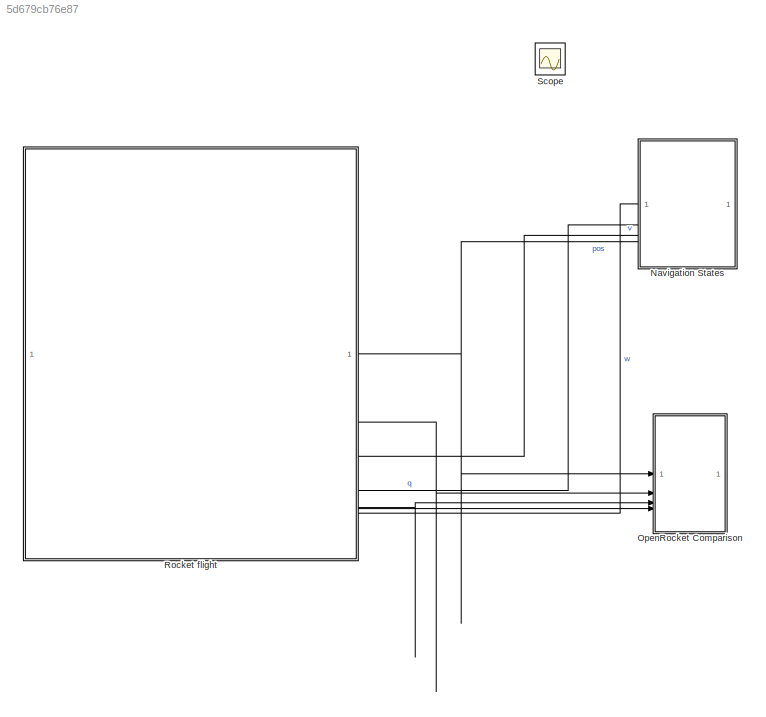
MODEL slx_5d679cb76e87
KIND model
CONFIG AbsTol = auto
CONFIG EnableMultiTasking = off
CONFIG FixedStep = auto
CONFIG InitFcn = %%% Sensor with 3D measurement\n% Define elements\nelems(1) = Simulink.BusElement;\nelems(1).Name = 'meas';\nelems(1).Dimensions = 3;\nelems(1).DataType = 'double';\nelems(2) = Simulink.BusElement;\nelems(2).Name = 'status';\nelems(2).Dimensions = 1;\nelems(2).DataType = 'boolean';\n% Create bus\nSensor3DBus = Simulink.Bus;\nSensor3DBus.Elements = elems;\n\n%%% Sensor with 1D measurement\n% Define elements\nelems...<+290ch>
CONFIG MaxStep = 0.002
CONFIG MinStep = auto
CONFIG RelTol = 1e-5
CONFIG SampleTimeConstraint = Unconstrained
CONFIG SolverName = ode45
CONFIG StartTime = 0.0
CONFIG StopTime = 70
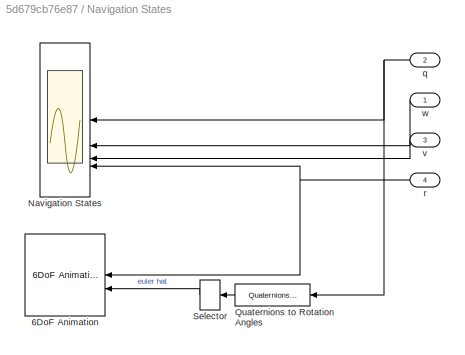
BLOCK [SubSystem] Navigation States
BLOCK [Reference] Navigation States/6DoF Animation  REF=aerolibanim/6DoF Animation
  NameLocation = top
  SourceBlock = aerolibanim/6DoF Animation
  SourceType = 6DoF_Animation
BLOCK [Scope] Navigation States/Navigation States
  ActiveDisplayYMaximum = 1.2486648107009546
  ActiveDisplayYMinimum = -1.2408627479450127
  DataLoggingVariableName = ScopeData7
  Floating = off
  GraphicalSettings = {"AxesScalingProperties":{"AlignXAxis":"Center","AlignYAxis":"Center","AutoScaleXAxisLimits":false,"AxesScaling":"Manual","AxesScalingNumUpdates":10,"ExpandOnly":true,"ScaleAxesLimitsAtStop":false,"XAxisDataRange":100,"YAxisDataRange":80},"DisplayProperties":{"ColorOrder":["auto","auto","auto","auto","auto","auto","auto","auto","auto","auto","auto","auto","auto","auto","auto","auto","auto","auto",...<+5200ch>
  LayoutDimensionsString = [2 2]
  MultipleDisplayCache = [{"MaxYLimMag":1.2486648107009546,"MaxYLimReal":1.2486648107009546,"MinYLimMag":0,"MinYLimReal":-1.2408627479450127,"PlotAsMagnitudePhase":false,"ShowGrid":true,"ShowLegend":true,"Title":"Attitude Quaternion","YLabel":""},{"MaxYLimMag":6.2221750432502674,"MaxYLimReal":6.2221750432502674,"MinYLimMag":0,"MinYLimReal":-3.75660730093725,"PlotAsMagnitudePhase":false,"ShowGrid":true,"ShowLegend":true,"T...<+466ch>
  NameLocation = top
  NumInputPorts = 4
  OpenAtSimulationStart = on
  ScopeFrameLocation = window
  ShowLegend = on
  ShowTimeAxisLabel = on
  TimeUnits = Seconds
  Title = Attitude Quaternion
  WasSavedAsWebScope = on
  WindowPosition = [1.000000,49.000000,1440.000000,830.000000,]
BLOCK [Reference] Navigation States/Quaternions to Rotation Angles  REF=sharedtransform/Quaternions to Rotation Angles
  AttributesFormatString = Rotation Order: %<rotationOrder>
  LibrarySourceBlock = aerolibtransform2/Quaternions to Rotation Angles
  SourceBlock = sharedtransform/Quaternions to Rotation Angles
  SourceType = Quat2Ang
BLOCK [Selector] Navigation States/Selector
  IndexOptions = Index vector (dialog)
  Indices = [3 2 1]
  InputPortWidth = 3
  NameLocation = top
  OutputSizes = 1
BLOCK [Inport] Navigation States/q
  NameLocation = top
  Port = 2
BLOCK [Inport] Navigation States/r
  NameLocation = top
  Port = 4
BLOCK [Inport] Navigation States/v
  NameLocation = top
  Port = 3
BLOCK [Inport] Navigation States/w
  NameLocation = top
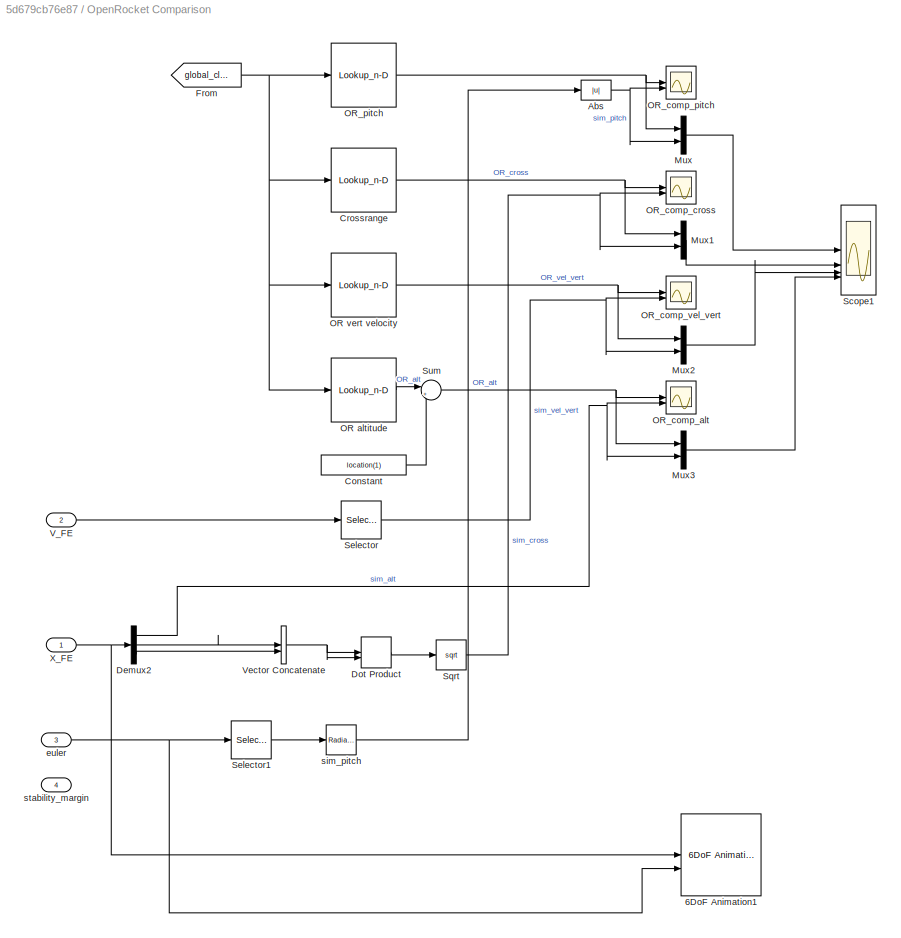
BLOCK [SubSystem] OpenRocket Comparison
BLOCK [Reference] OpenRocket Comparison/6DoF Animation1  REF=aerolibanim/6DoF Animation
  SourceBlock = aerolibanim/6DoF Animation
  SourceType = 6DoF_Animation
BLOCK [Abs] OpenRocket Comparison/Abs
  SaturateOnIntegerOverflow = off
BLOCK [Constant] OpenRocket Comparison/Constant
  Value = location(1)
BLOCK [Lookup_n-D] OpenRocket Comparison/Crossrange
  BreakpointsForDimension1 = sim_time
  InputPortMap = u0
  InternalRulePriority = Speed
  NumberOfTableDimensions = 1
  RndMeth = Simplest
  Table = crossrange
BLOCK [Demux] OpenRocket Comparison/Demux2
  Outputs = 3
BLOCK [DotProduct] OpenRocket Comparison/Dot Product
  OutDataTypeStr = Inherit: Inherit via internal rule
BLOCK [From] OpenRocket Comparison/From
  GotoTag = global_clock
  TagVisibility = global
BLOCK [Mux] OpenRocket Comparison/Mux
  DisplayOption = bar
  Inputs = 2
BLOCK [Mux] OpenRocket Comparison/Mux1
  DisplayOption = bar
  Inputs = 2
BLOCK [Mux] OpenRocket Comparison/Mux2
  DisplayOption = bar
  Inputs = 2
BLOCK [Mux] OpenRocket Comparison/Mux3
  DisplayOption = bar
  Inputs = 2
BLOCK [Lookup_n-D] OpenRocket Comparison/OR altitude
  BreakpointsForDimension1 = sim_time
  InputPortMap = u0
  InternalRulePriority = Speed
  NumberOfTableDimensions = 1
  RndMeth = Simplest
  Table = alt
BLOCK [Lookup_n-D] OpenRocket Comparison/OR vert velocity
  BreakpointsForDimension1 = sim_time
  InputPortMap = u0
  InternalRulePriority = Speed
  NumberOfTableDimensions = 1
  RndMeth = Simplest
  Table = vel_ver
BLOCK [Scope] OpenRocket Comparison/OR_comp_alt
  ActiveDisplayYMaximum = 7549.94141
  ActiveDisplayYMinimum = -838.88766
  DataLoggingVariableName = ScopeData2
  Floating = off
  GraphicalSettings = {"GraphicalSettings":{"LegacySettings":true,"Style":{"AxesScalingProperties":{"ScaleAxesLimitsAtStop":false},"Style":{"AxesColor":"[0 0 0]","ChannelNames":[""],"ColorOrder":"[1 0.909803921568627 0.392156862745098;0.149019607843137 0.549019607843137 0.866666666666667;0.96078431372549 0.466666666666667 0.16078431372549;0.286274509803922 0.858823529411765 0.250980392156863;0.752941176470588 0.3607843...<+516ch>  <repeated x3 — deduplicated; at blocks: OR_comp_alt, OR_comp_cross, OR_comp_vel_vert>
  MultipleDisplayCache = [{"MaxYLimMag":7549.94141,"MaxYLimReal":7549.94141,"MinYLimMag":0,"MinYLimReal":-838.88766,"PlotAsMagnitudePhase":false,"ShowGrid":true,"ShowLegend":true,"Title":"%<SignalLabel>","YLabel":""}]
  NumInputPorts = 2
  ShowLegend = on
  WasSavedAsWebScope = on
  WindowPosition = [1 49 1920 1075]
BLOCK [Scope] OpenRocket Comparison/OR_comp_cross
  ActiveDisplayYMaximum = 1794.25654
  ActiveDisplayYMinimum = -199.36184
  DataLoggingVariableName = ScopeData4
  Floating = off
  MultipleDisplayCache = [{"MaxYLimMag":1794.25654,"MaxYLimReal":1794.25654,"MinYLimMag":0,"MinYLimReal":-199.36184,"PlotAsMagnitudePhase":false,"ShowGrid":true,"ShowLegend":true,"Title":"%<SignalLabel>","YLabel":""}]
  NumInputPorts = 2
  ShowLegend = on
  WasSavedAsWebScope = on
  WindowPosition = [1 49 1920 1075]
BLOCK [Scope] OpenRocket Comparison/OR_comp_pitch
  ActiveDisplayYMaximum = 167.10802
  ActiveDisplayYMinimum = -13.012
  DataLoggingVariableName = ScopeData8
  Floating = off
  GraphicalSettings = {"GraphicalSettings":{"LegacySettings":true,"Style":{"AxesScalingProperties":{"ScaleAxesLimitsAtStop":false},"Style":{"AxesColor":"[0 0 0]","ChannelNames":[""],"ColorOrder":"[1 0.909803921568627 0.392156862745098;0.149019607843137 0.549019607843137 0.866666666666667;0.96078431372549 0.466666666666667 0.16078431372549;0.286274509803922 0.858823529411765 0.250980392156863;0.752941176470588 0.3607843...<+585ch>
  MultipleDisplayCache = [{"MaxYLimMag":167.10802,"MaxYLimReal":167.10802,"MinYLimMag":0,"MinYLimReal":-13.012,"PlotAsMagnitudePhase":false,"ShowGrid":true,"ShowLegend":true,"Title":"%<SignalLabel>","YLabel":""}]
  NumInputPorts = 2
  ShowLegend = on
  WasSavedAsWebScope = on
  WindowPosition = [1 1 1920 1028]
BLOCK [Scope] OpenRocket Comparison/OR_comp_vel_vert
  ActiveDisplayYMaximum = 488.12758
  ActiveDisplayYMinimum = -95.80315
  DataLoggingVariableName = ScopeData10
  Floating = off
  MultipleDisplayCache = [{"MaxYLimMag":488.12758,"MaxYLimReal":488.12758,"MinYLimMag":0,"MinYLimReal":-95.80315,"PlotAsMagnitudePhase":false,"ShowGrid":true,"ShowLegend":true,"Title":"%<SignalLabel>","YLabel":""}]
  NumInputPorts = 2
  ShowLegend = on
  WasSavedAsWebScope = on
  WindowPosition = [1 49 1920 1075]
BLOCK [Lookup_n-D] OpenRocket Comparison/OR_pitch
  BreakpointsForDimension1 = sim_time
  InputPortMap = u0
  InternalRulePriority = Speed
  NumberOfTableDimensions = 1
  RndMeth = Simplest
  Table = angle_vert_deg
BLOCK [Scope] OpenRocket Comparison/Scope1
  ActiveDisplayYMaximum = 50.131045994430721
  ActiveDisplayYMinimum = -5.57011622160341
  DataLoggingVariableName = ScopeData11
  Floating = off
  GraphicalSettings = {"AxesScalingProperties":{"AlignXAxis":"Center","AlignYAxis":"Center","AutoScaleXAxisLimits":false,"AxesScaling":"Manual","AxesScalingNumUpdates":10,"ExpandOnly":true,"ScaleAxesLimitsAtStop":false,"XAxisDataRange":100,"YAxisDataRange":80},"DisplayProperties":{"ColorOrder":["auto","auto","auto","auto","auto","auto","auto","auto","auto","auto","auto","auto","auto","auto","auto","auto","auto","auto",...<+3740ch>
  LayoutDimensionsString = [2 2]
  MultipleDisplayCache = [{"MaxYLimMag":50.131045994430721,"MaxYLimReal":50.131045994430721,"MinYLimMag":0,"MinYLimReal":-5.57011622160341,"PlotAsMagnitudePhase":false,"ShowGrid":true,"ShowLegend":true,"Title":"%<SignalLabel>","YLabel":""},{"MaxYLimMag":8533.8129773752516,"MaxYLimReal":8533.8129773752516,"MinYLimMag":0,"MinYLimReal":-948.20144193058331,"PlotAsMagnitudePhase":false,"ShowGrid":true,"ShowLegend":true,"Title"...<+463ch>
  NumInputPorts = 4
  ScopeFrameLocation = window
  ShowLegend = on
  WasSavedAsWebScope = on
  WindowPosition = [1 49 1440 782]
BLOCK [Selector] OpenRocket Comparison/Selector
  IndexOptions = Index vector (dialog)
  Indices = [1]
  InputPortWidth = 3
  OutputSizes = 1
BLOCK [Selector] OpenRocket Comparison/Selector1
  IndexOptions = Index vector (dialog)
  Indices = [2]
  InputPortWidth = 3
  OutputSizes = 1
BLOCK [Sqrt] OpenRocket Comparison/Sqrt
BLOCK [Sum] OpenRocket Comparison/Sum
  Inputs = |++
BLOCK [Inport] OpenRocket Comparison/V_FE
  Port = 2
BLOCK [Concatenate] OpenRocket Comparison/Vector Concatenate
BLOCK [Inport] OpenRocket Comparison/X_FE
BLOCK [Inport] OpenRocket Comparison/euler
  Port = 3
BLOCK [Reference] OpenRocket Comparison/sim_pitch  REF=simulink_extras/Transformations/Radians
to Degrees
  SourceBlock = simulink_extras/Transformations/Radians\nto Degrees
  SourceType = RadiansToDegrees
BLOCK [Inport] OpenRocket Comparison/stability_margin
  Port = 4
BLOCK [SubSystem] Rocket flight
  PortSchema = {"entries":[{"content":{"sides":[{"content":{"connectorIds":["In1"]},"type":"ConnectorPlacement.EquallySpacedRectSide","uuid":"9f79cae0-15ae-41cc-86ca-52b2ba536b20"},{"content":{"connectorIds":["Out1","Out2","Out3","Out4","Out5","Out6","Out7","Out8","Out9","Out11","Out10","Out13","Out14","Out12"],"side":"RIGHT"},"type":"ConnectorPlacement.EquallySpacedRectSide","uuid":"ebcb1700-a632-4dda-8ea5-5b87...<+318ch>
  ReferencedSubsystem = rocket_flight
BLOCK [Scope] Scope
  ActiveDisplayYMaximum = 9.80609
  ActiveDisplayYMinimum = 9.79326
  DataLoggingVariableName = ScopeData1
  Floating = off
  GraphicalSettings = {"GraphicalSettings":{"LegacySettings":true,"Style":{"AxesScalingProperties":{"ScaleAxesLimitsAtStop":false},"Style":{"AxesColor":"[0 0 0]","ChannelNames":[""],"ColorOrder":"[1 0.909803921568627 0.392156862745098;0.149019607843137 0.549019607843137 0.866666666666667;0.96078431372549 0.466666666666667 0.16078431372549;0.286274509803922 0.858823529411765 0.250980392156863;0.752941176470588 0.3607843...<+538ch>
  IOType = viewer
  MultipleDisplayCache = [{"MaxYLimMag":9.80609,"MaxYLimReal":9.80609,"MinYLimMag":9.79326,"MinYLimReal":9.79326,"PlotAsMagnitudePhase":false,"ShowGrid":true,"ShowLegend":false,"Title":"%<SignalLabel>","YLabel":""}]
  NumInputPorts = 1
  WasSavedAsWebScope = on
LINE Navigation States/Quaternions to Rotation Angles:1 -> Navigation States/Selector:1
LINE Navigation States/Selector:1 -> Navigation States/6DoF Animation:2
NET Navigation States/q:1 -> Navigation States/Navigation States:1, Navigation States/Quaternions to Rotation Angles:1
NET Navigation States/r:1 -> Navigation States/6DoF Animation:1, Navigation States/Navigation States:4
LINE Navigation States/v:1 -> Navigation States/Navigation States:3
LINE Navigation States/w:1 -> Navigation States/Navigation States:2
NET OpenRocket Comparison/Abs:1 -> OpenRocket Comparison/Mux:2, OpenRocket Comparison/OR_comp_pitch:2
LINE OpenRocket Comparison/Constant:1 -> OpenRocket Comparison/Sum:2
NET OpenRocket Comparison/Crossrange:1 -> OpenRocket Comparison/Mux1:1, OpenRocket Comparison/OR_comp_cross:1
NET OpenRocket Comparison/Demux2:1 -> OpenRocket Comparison/Mux3:2, OpenRocket Comparison/OR_comp_alt:2
LINE OpenRocket Comparison/Demux2:2 -> OpenRocket Comparison/Vector Concatenate:1
LINE OpenRocket Comparison/Demux2:3 -> OpenRocket Comparison/Vector Concatenate:2
LINE OpenRocket Comparison/Dot Product:1 -> OpenRocket Comparison/Sqrt:1
NET OpenRocket Comparison/From:1 -> OpenRocket Comparison/Crossrange:1, OpenRocket Comparison/OR altitude:1, OpenRocket Comparison/OR vert velocity:1, OpenRocket Comparison/OR_pitch:1
LINE OpenRocket Comparison/Mux1:1 -> OpenRocket Comparison/Scope1:2
LINE OpenRocket Comparison/Mux2:1 -> OpenRocket Comparison/Scope1:3
LINE OpenRocket Comparison/Mux3:1 -> OpenRocket Comparison/Scope1:4
LINE OpenRocket Comparison/Mux:1 -> OpenRocket Comparison/Scope1:1
LINE OpenRocket Comparison/OR altitude:1 -> OpenRocket Comparison/Sum:1
NET OpenRocket Comparison/OR vert velocity:1 -> OpenRocket Comparison/Mux2:1, OpenRocket Comparison/OR_comp_vel_vert:1
NET OpenRocket Comparison/OR_pitch:1 -> OpenRocket Comparison/Mux:1, OpenRocket Comparison/OR_comp_pitch:1
LINE OpenRocket Comparison/Selector1:1 -> OpenRocket Comparison/sim_pitch:1
NET OpenRocket Comparison/Selector:1 -> OpenRocket Comparison/Mux2:2, OpenRocket Comparison/OR_comp_vel_vert:2
NET OpenRocket Comparison/Sqrt:1 -> OpenRocket Comparison/Mux1:2, OpenRocket Comparison/OR_comp_cross:2
NET OpenRocket Comparison/Sum:1 -> OpenRocket Comparison/Mux3:1, OpenRocket Comparison/OR_comp_alt:1
LINE OpenRocket Comparison/V_FE:1 -> OpenRocket Comparison/Selector:1
NET OpenRocket Comparison/Vector Concatenate:1 -> OpenRocket Comparison/Dot Product:1, OpenRocket Comparison/Dot Product:2
NET OpenRocket Comparison/X_FE:1 -> OpenRocket Comparison/6DoF Animation1:1, OpenRocket Comparison/Demux2:1
NET OpenRocket Comparison/euler:1 -> OpenRocket Comparison/6DoF Animation1:2, OpenRocket Comparison/Selector1:1
LINE OpenRocket Comparison/sim_pitch:1 -> OpenRocket Comparison/Abs:1
NET Rocket flight:1 -> Navigation States:4, OpenRocket Comparison:1
LINE Rocket flight:14 -> OpenRocket Comparison:4
LINE Rocket flight:2 -> OpenRocket Comparison:2
LINE Rocket flight:3 -> Navigation States:3
LINE Rocket flight:5 -> Navigation States:2
LINE Rocket flight:7 -> OpenRocket Comparison:3
LINE Rocket flight:8 -> Navigation States:1
note: NET lines group one-source signal fan-out (src -> all destinations, sorted); 1:1 wires keep LINE
